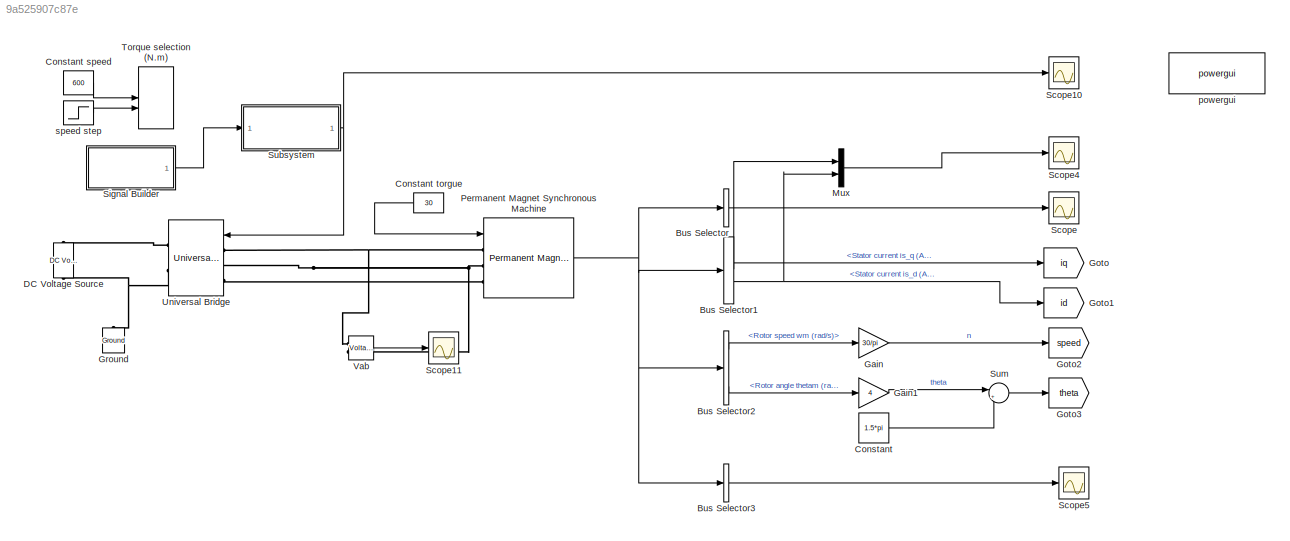
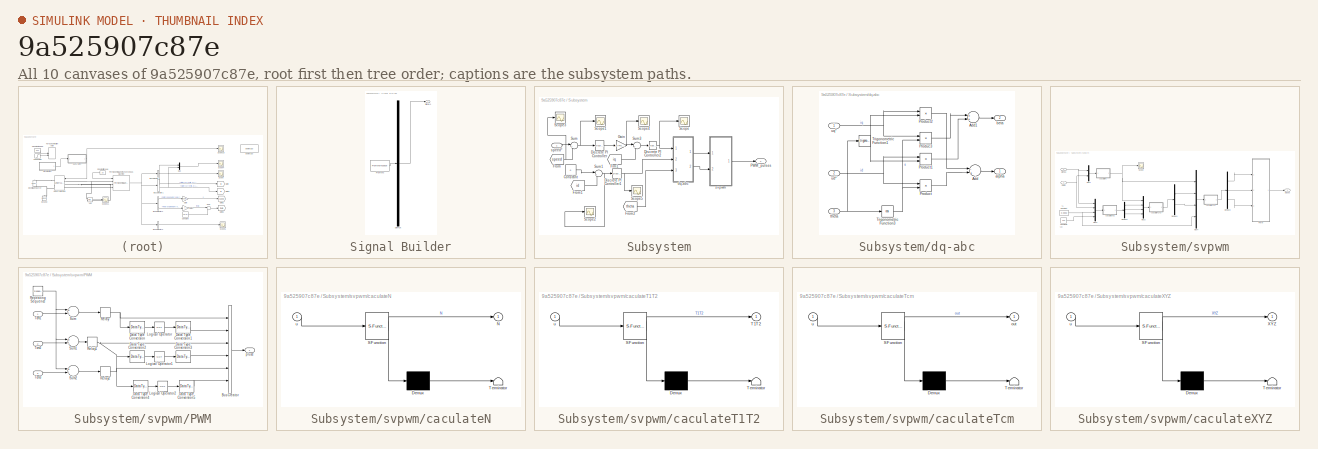
[diagram: thumbnail index - all 10 canvases of the model, root first then tree order]
MODEL slx_9a525907c87e
KIND model
BLOCK [BusSelector] Bus Selector
  OutputAsBus = on
  OutputSignals = Stator current is_a (A),Stator current is_b (A),Stator current is_c (A)
  Ports = [1, 1]
BLOCK [BusSelector] Bus Selector1
  OutputSignals = Stator current is_q (A),Stator current is_d (A)
  Ports = [1, 2]
BLOCK [BusSelector] Bus Selector2
  OutputSignals = Rotor speed wm (rad/s),Electromagnetic torque Te (N*m),Rotor angle thetam (rad)
  Ports = [1, 3]
BLOCK [BusSelector] Bus Selector3
  OutputAsBus = on
  OutputSignals = Stator voltage Vs_q (V),Stator voltage Vs_d (V)
  Ports = [1, 1]
BLOCK [Constant] Constant
  Value = 1.5*pi
BLOCK [Constant] Constant speed
  Commented = on
  Value = 600
BLOCK [Constant] Constant torgue
  Value = 30
BLOCK [Reference] DC Voltage Source  REF=powerlib/Electrical
Sources/DC Voltage Source
  Amplitude = 300
  Measurements = None
  Ports = [0, 0, 0, 0, 0, 1, 1]
  SourceBlock = powerlib/Electrical\nSources/DC Voltage Source
  SourceType = DC Voltage Source
BLOCK [Gain] Gain
  Gain = 30/pi
  OutDataTypeStr = Inherit: Inherit via internal rule
  ParamDataTypeStr = Inherit: Inherit via internal rule
  SaturateOnIntegerOverflow = off
BLOCK [Gain] Gain1
  Gain = 4
  OutDataTypeStr = Inherit: Inherit via internal rule
  ParamDataTypeStr = Inherit: Inherit via internal rule
  SaturateOnIntegerOverflow = off
BLOCK [Goto] Goto
  GotoTag = iq
  TagVisibility = global
BLOCK [Goto] Goto1
  GotoTag = id
  TagVisibility = global
BLOCK [Goto] Goto2
  GotoTag = speed
  TagVisibility = global
BLOCK [Goto] Goto3
  GotoTag = theta
  TagVisibility = global
BLOCK [Reference] Ground  REF=powerlib/Elements/Ground
  LConnTagsString = a
  Ports = [0, 0, 0, 0, 0, 1]
  SourceBlock = powerlib/Elements/Ground
  SourceType = Ground
BLOCK [Mux] Mux
  DisplayOption = bar
  Inputs = 2
  Ports = [2, 1]
BLOCK [Reference] Permanent Magnet Synchronous Machine  REF=powerlib/Machines/Permanent Magnet
Synchronous Machine
  Flat = 120
  Flux = 0.175
  FluxDistribution = Sinusoidal
  Inductance = 8.5e-3
  InitialConditions = [0,0, 0,0]
  InitialConditions5ph = [0 0 0 0 0 0]
  La = 0.000835
  MachineConstant = Flux linkage established by magnets (V.s)
  MeasurementBus = off
  Mechanical = [0.0008 0.001 4]
  MechanicalLoad = Torque Tm
  NbPhases = 3
  PolePairs = 4
  Ports = [1, 1, 0, 0, 0, 3]
  PresetModel = No
  RefAngle = 90 degrees behind phase A axis (modified Park)
  Resistance = 2.8750
  RotorType = Round
  ShowDetailedParameters = on
  SourceBlock = powerlib/Machines/Permanent Magnet\nSynchronous Machine
  SourceType = Permanent Magnet Synchronous Machine
  TorqueCst = 1.05
  TsBlock = -1
  TsPowergui = 0
  VoltageCst = 126.966
  dqInductances = [8.5e-3,8.5e-3]
BLOCK [Scope] Scope
  DataFormat = StructureWithTime
  Floating = off
  LimitDataPoints = off
  NumInputPorts = 1
  Ports = [1]
  SampleTime = 0
  ShowLegends = off
  YMax = 10
  YMin = -11
BLOCK [Scope] Scope10
  DataFormat = StructureWithTime
  Floating = off
  LimitDataPoints = off
  NumInputPorts = 1
  Ports = [1]
  SampleTime = 0
  SaveName = ScopeData6
  ShowLegends = off
  TickLabels = on
  YMax = 1
  YMin = 0
  ZoomMode = xonly
BLOCK [Scope] Scope11
  DataFormat = StructureWithTime
  Floating = off
  LimitDataPoints = off
  NumInputPorts = 1
  Ports = [1]
  SampleTime = 0
  SaveName = ScopeData8
  ShowLegends = off
  YMax = 350
  YMin = -350
BLOCK [Scope] Scope4
  DataFormat = StructureWithTime
  Floating = off
  LimitDataPoints = off
  NumInputPorts = 1
  Ports = [1]
  SampleTime = 0
  SaveName = ScopeData4
  ShowLegends = off
  YMax = 5.25
  YMin = -0.5
BLOCK [Scope] Scope5
  DataFormat = StructureWithTime
  Floating = off
  LimitDataPoints = off
  NumInputPorts = 1
  Ports = [1]
  SampleTime = 0
  SaveName = ScopeData5
  ShowLegends = off
  YMax = 225
  YMin = -200
BLOCK [SubSystem] Signal Builder
  ClipboardFcn = sigbuilder_block('clipboard');
  CloseFcn = sigbuilder_block('close');
  ContinueFcn = sigbuilder_block('continue');
  CopyFcn = sigbuilder_block('copy');
  DeleteFcn = sigbuilder_block('delete');
  LoadFcn = sigbuilder_block('load');
  MaskHideContents = on
  ModelCloseFcn = sigbuilder_block('modelClose');
  NameChangeFcn = sigbuilder_block('namechange');
  OpenFcn = sigbuilder_block('open',[295.5 114.75 550.5 393.75 ]);
  PauseFcn = sigbuilder_block('pause');
  Ports = [0, 1]
  PreSaveFcn = sigbuilder_block('preSave');
  RequestExecContextInheritance = off
  StartFcn = sigbuilder_block('start');
  StopFcn = sigbuilder_block('stop');
  Tag = STV Subsys
BLOCK [Demux] Signal Builder/Demux
  Outputs = 1
  Ports = [1, 1]
  Tag = STV Demux
BLOCK [FromWorkspace] Signal Builder/FromWs
  SampleTime = 0
  Tag = STV FromWs
  VariableName = tuvar
  ZeroCross = on
BLOCK [Outport] Signal Builder/Signal 1
  IconDisplay = Port number
  Tag = STV Outport
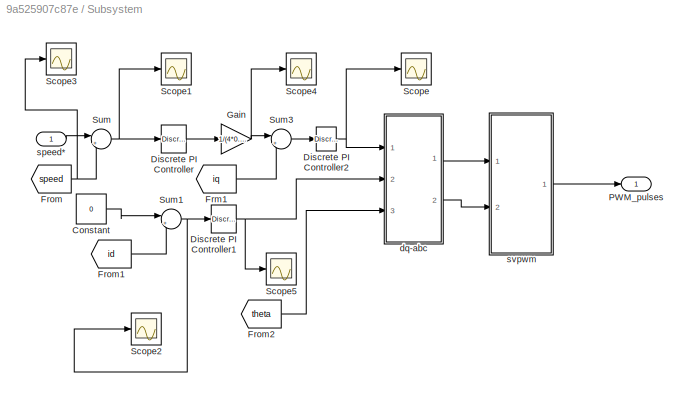
BLOCK [SubSystem] Subsystem
  Ports = [1, 1]
  RequestExecContextInheritance = off
BLOCK [Constant] Subsystem/Constant
  Value = 0
BLOCK [Reference] Subsystem/Discrete PI Controller  REF=powerlib_extras/Discrete 
Control Blocks/Discrete
PI Controller
  Init = 0
  Ki = 60
  Kp = 2.6
  Par_Limits = [30 -30]
  Ports = [1, 1]
  SourceBlock = powerlib_extras/Discrete \nControl Blocks/Discrete\nPI Controller
  SourceType = Discrete PI Controller
  Ts = 5e-6
BLOCK [Reference] Subsystem/Discrete PI Controller1  REF=powerlib_extras/Discrete 
Control Blocks/Discrete
PI Controller
  Init = 0
  Ki = 1000
  Kp = 10
  Par_Limits = [1e6 -1e6]
  Ports = [1, 1]
  SourceBlock = powerlib_extras/Discrete \nControl Blocks/Discrete\nPI Controller
  SourceType = Discrete PI Controller
  Ts = 5e-6
BLOCK [Reference] Subsystem/Discrete PI Controller2  REF=powerlib_extras/Discrete 
Control Blocks/Discrete
PI Controller
  Init = 0
  Ki = 100
  Kp = 3
  Par_Limits = [1e6 -1e6]
  Ports = [1, 1]
  SourceBlock = powerlib_extras/Discrete \nControl Blocks/Discrete\nPI Controller
  SourceType = Discrete PI Controller
  Ts = 5e-6
BLOCK [From] Subsystem/Frm1
  GotoTag = iq
  TagVisibility = global
BLOCK [From] Subsystem/From
  GotoTag = speed
  TagVisibility = global
BLOCK [From] Subsystem/From1
  GotoTag = id
  TagVisibility = global
BLOCK [From] Subsystem/From2
  GotoTag = theta
  TagVisibility = global
BLOCK [Gain] Subsystem/Gain
  Gain = 1/(4*0.175)
  OutDataTypeStr = Inherit: Inherit via internal rule
  ParamDataTypeStr = Inherit: Inherit via internal rule
  SaturateOnIntegerOverflow = off
BLOCK [Outport] Subsystem/PWM_pulses
  IconDisplay = Port number
BLOCK [Scope] Subsystem/Scope
  DataFormat = StructureWithTime
  Floating = off
  LimitDataPoints = off
  NumInputPorts = 1
  Ports = [1]
  SampleTime = 0
  SaveName = ScopeData7
  ShowLegends = off
  YMax = 300
  YMin = -300
BLOCK [Scope] Subsystem/Scope1
  DataFormat = StructureWithTime
  Floating = off
  LimitDataPoints = off
  NumInputPorts = 1
  Ports = [1]
  SampleTime = 0
  SaveName = ScopeData3
  ShowLegends = off
  YMax = 300
  YMin = -300
BLOCK [Scope] Subsystem/Scope2
  DataFormat = StructureWithTime
  Floating = off
  LimitDataPoints = off
  NumInputPorts = 1
  Ports = [1]
  SampleTime = 0
  SaveName = ScopeData9
  ShowLegends = off
  YMax = 300
  YMin = -300
BLOCK [Scope] Subsystem/Scope3
  DataFormat = StructureWithTime
  Floating = off
  LimitDataPoints = off
  NumInputPorts = 1
  Ports = [1]
  SampleTime = 0
  SaveName = ScopeData10
  ShowLegends = off
  YMax = 102
  YMin = 98.25
BLOCK [Scope] Subsystem/Scope4
  DataFormat = StructureWithTime
  Floating = off
  LimitDataPoints = off
  NumInputPorts = 1
  Ports = [1]
  SampleTime = 0
  SaveName = ScopeData11
  ShowLegends = off
  YMax = 37
  YMin = 19
BLOCK [Scope] Subsystem/Scope5
  DataFormat = StructureWithTime
  Floating = off
  LimitDataPoints = off
  NumInputPorts = 1
  Ports = [1]
  SampleTime = 0
  SaveName = ScopeData12
  ShowLegends = off
  YMax = 300
  YMin = -300
BLOCK [Sum] Subsystem/Sum
  IconShape = round
  InputSameDT = off
  Inputs = |+-
  OutDataTypeStr = Inherit: Inherit via internal rule
  Ports = [2, 1]
  SaturateOnIntegerOverflow = off
BLOCK [Sum] Subsystem/Sum1
  IconShape = round
  InputSameDT = off
  Inputs = |+-
  OutDataTypeStr = Inherit: Inherit via internal rule
  Ports = [2, 1]
  SaturateOnIntegerOverflow = off
BLOCK [Sum] Subsystem/Sum3
  IconShape = round
  InputSameDT = off
  Inputs = |+-
  OutDataTypeStr = Inherit: Inherit via internal rule
  Ports = [2, 1]
  SaturateOnIntegerOverflow = off
BLOCK [SubSystem] Subsystem/dq-abc
  Ports = [3, 2]
  RequestExecContextInheritance = off
BLOCK [Sum] Subsystem/dq-abc/Add
  InputSameDT = off
  Inputs = -+
  OutDataTypeStr = Inherit: Inherit via internal rule
  Ports = [2, 1]
  SaturateOnIntegerOverflow = off
BLOCK [Sum] Subsystem/dq-abc/Add1
  InputSameDT = off
  OutDataTypeStr = Inherit: Inherit via internal rule
  Ports = [2, 1]
  SaturateOnIntegerOverflow = off
BLOCK [Product] Subsystem/dq-abc/Produc3
  InputSameDT = off
  OutDataTypeStr = Inherit: Inherit via internal rule
  Ports = [2, 1]
  SaturateOnIntegerOverflow = off
BLOCK [Product] Subsystem/dq-abc/Product
  InputSameDT = off
  OutDataTypeStr = Inherit: Inherit via internal rule
  Ports = [2, 1]
  SaturateOnIntegerOverflow = off
BLOCK [Product] Subsystem/dq-abc/Product1
  InputSameDT = off
  OutDataTypeStr = Inherit: Inherit via internal rule
  Ports = [2, 1]
  SaturateOnIntegerOverflow = off
BLOCK [Product] Subsystem/dq-abc/Product2
  InputSameDT = off
  OutDataTypeStr = Inherit: Inherit via internal rule
  Ports = [2, 1]
  SaturateOnIntegerOverflow = off
BLOCK [Trigonometry] Subsystem/dq-abc/Trigonometric Function1
  Ports = [1, 1]
BLOCK [Trigonometry] Subsystem/dq-abc/Trigonometric Function3
  Operator = cos
  Ports = [1, 1]
BLOCK [Outport] Subsystem/dq-abc/alpha
  IconDisplay = Port number
BLOCK [Outport] Subsystem/dq-abc/beta
  IconDisplay = Port number
  Port = 2
BLOCK [Inport] Subsystem/dq-abc/theta
  IconDisplay = Port number
  Port = 3
BLOCK [Inport] Subsystem/dq-abc/ud*
  IconDisplay = Port number
  Port = 2
BLOCK [Inport] Subsystem/dq-abc/uq*
  IconDisplay = Port number
BLOCK [Inport] Subsystem/speed*
  IconDisplay = Port number
BLOCK [SubSystem] Subsystem/svpwm
  Ports = [2, 1]
  RequestExecContextInheritance = off
BLOCK [Constant] Subsystem/svpwm/Constant
  Value = 0.0002
BLOCK [Constant] Subsystem/svpwm/Constant1
  Value = 300
BLOCK [Demux] Subsystem/svpwm/Demux1
  DisplayOption = bar
  Outputs = 2
  Ports = [1, 2]
BLOCK [Demux] Subsystem/svpwm/Demux2
  DisplayOption = bar
  Outputs = 3
  Ports = [1, 3]
BLOCK [Demux] Subsystem/svpwm/Demux3
  DisplayOption = bar
  Outputs = 3
  Ports = [1, 3]
BLOCK [Mux] Subsystem/svpwm/Mux1
  DisplayOption = bar
  Inputs = 2
  Ports = [2, 1]
BLOCK [Mux] Subsystem/svpwm/Mux2
  DisplayOption = bar
  Ports = [4, 1]
BLOCK [Mux] Subsystem/svpwm/Mux3
  DisplayOption = bar
  Ports = [4, 1]
BLOCK [Mux] Subsystem/svpwm/Mux4
  DisplayOption = bar
  Ports = [4, 1]
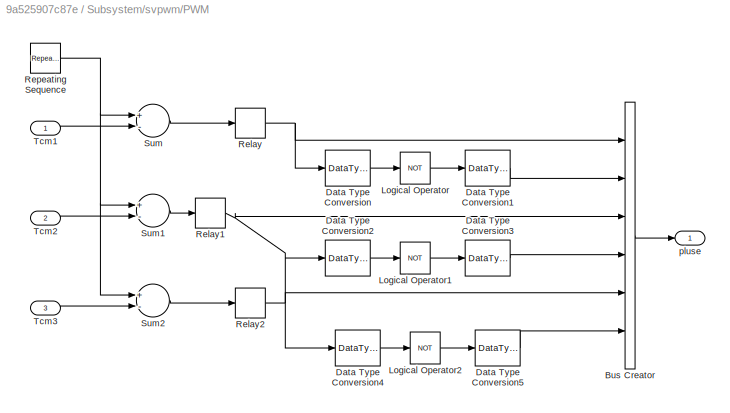
BLOCK [SubSystem] Subsystem/svpwm/PWM
  Ports = [3, 1]
  RequestExecContextInheritance = off
BLOCK [BusCreator] Subsystem/svpwm/PWM/Bus Creator
  DisplayOption = bar
  Inputs = 6
  Ports = [6, 1]
BLOCK [DataTypeConversion] Subsystem/svpwm/PWM/Data Type Conversion
  OutDataTypeStr = boolean
  RndMeth = Floor
  SaturateOnIntegerOverflow = off
BLOCK [DataTypeConversion] Subsystem/svpwm/PWM/Data Type Conversion1
  OutDataTypeStr = double
  RndMeth = Floor
  SaturateOnIntegerOverflow = off
BLOCK [DataTypeConversion] Subsystem/svpwm/PWM/Data Type Conversion2
  OutDataTypeStr = boolean
  RndMeth = Floor
  SaturateOnIntegerOverflow = off
BLOCK [DataTypeConversion] Subsystem/svpwm/PWM/Data Type Conversion3
  OutDataTypeStr = double
  RndMeth = Floor
  SaturateOnIntegerOverflow = off
BLOCK [DataTypeConversion] Subsystem/svpwm/PWM/Data Type Conversion4
  OutDataTypeStr = boolean
  RndMeth = Floor
  SaturateOnIntegerOverflow = off
BLOCK [DataTypeConversion] Subsystem/svpwm/PWM/Data Type Conversion5
  OutDataTypeStr = double
  RndMeth = Floor
  SaturateOnIntegerOverflow = off
BLOCK [Logic] Subsystem/svpwm/PWM/Logical Operator
  AllPortsSameDT = off
  Operator = NOT
  OutDataTypeStr = boolean
  Ports = [1, 1]
BLOCK [Logic] Subsystem/svpwm/PWM/Logical Operator1
  AllPortsSameDT = off
  Operator = NOT
  OutDataTypeStr = boolean
  Ports = [1, 1]
BLOCK [Logic] Subsystem/svpwm/PWM/Logical Operator2
  AllPortsSameDT = off
  Operator = NOT
  OutDataTypeStr = boolean
  Ports = [1, 1]
BLOCK [Relay] Subsystem/svpwm/PWM/Relay
BLOCK [Relay] Subsystem/svpwm/PWM/Relay1
BLOCK [Relay] Subsystem/svpwm/PWM/Relay2
BLOCK [Reference] Subsystem/svpwm/PWM/Repeating Sequence  REF=simulink/Sources/Repeating
Sequence
  Ports = [0, 1]
  SourceBlock = simulink/Sources/Repeating\nSequence
  SourceType = Repeating table
  rep_seq_t = [0 0.0001 0.0002]
  rep_seq_y = [0 0.0001 0]
BLOCK [Sum] Subsystem/svpwm/PWM/Sum
  InputSameDT = off
  Inputs = +-
  OutDataTypeStr = Inherit: Inherit via internal rule
  Ports = [2, 1]
  SaturateOnIntegerOverflow = off
BLOCK [Sum] Subsystem/svpwm/PWM/Sum1
  InputSameDT = off
  Inputs = +-
  OutDataTypeStr = Inherit: Inherit via internal rule
  Ports = [2, 1]
  SaturateOnIntegerOverflow = off
BLOCK [Sum] Subsystem/svpwm/PWM/Sum2
  InputSameDT = off
  Inputs = +-
  OutDataTypeStr = Inherit: Inherit via internal rule
  Ports = [2, 1]
  SaturateOnIntegerOverflow = off
BLOCK [Inport] Subsystem/svpwm/PWM/Tcm1
  IconDisplay = Port number
BLOCK [Inport] Subsystem/svpwm/PWM/Tcm2
  IconDisplay = Port number
  Port = 2
BLOCK [Inport] Subsystem/svpwm/PWM/Tcm3
  IconDisplay = Port number
  Port = 3
BLOCK [Outport] Subsystem/svpwm/PWM/pluse
  IconDisplay = Port number
BLOCK [Scope] Subsystem/svpwm/Scope
  DataFormat = StructureWithTime
  Floating = off
  NumInputPorts = 1
  Ports = [1]
  SampleTime = 0
  SaveName = ScopeData2
  ShowLegends = off
  YMax = 6
  YMin = 1
BLOCK [Inport] Subsystem/svpwm/alpha1
  IconDisplay = Port number
BLOCK [Inport] Subsystem/svpwm/beta1
  IconDisplay = Port number
  Port = 2
BLOCK [SubSystem] Subsystem/svpwm/caculateN
  ErrorFcn = Stateflow.Translate.translate
  PermitHierarchicalResolution = ExplicitOnly
  Ports = [1, 1]
  RequestExecContextInheritance = off
  SFBlockType = MATLAB Function
  TreatAsAtomicUnit = on
BLOCK [Demux] Subsystem/svpwm/caculateN/ Demux 
  Outputs = 1
  Ports = [1, 1]
BLOCK [S-Function] Subsystem/svpwm/caculateN/ SFunction 
  EnableBusSupport = on
  FunctionName = sf_sfun
  PortCounts = [1 2]
  Ports = [1, 2]
  Tag = Stateflow S-Function pmsm_summer_last 3
BLOCK [Terminator] Subsystem/svpwm/caculateN/ Terminator 
BLOCK [Outport] Subsystem/svpwm/caculateN/N
  IconDisplay = Port number
BLOCK [Inport] Subsystem/svpwm/caculateN/u
  IconDisplay = Port number
BLOCK [SubSystem] Subsystem/svpwm/caculateT1T2
  ErrorFcn = Stateflow.Translate.translate
  PermitHierarchicalResolution = ExplicitOnly
  Ports = [1, 1]
  RequestExecContextInheritance = off
  SFBlockType = MATLAB Function
  TreatAsAtomicUnit = on
BLOCK [Demux] Subsystem/svpwm/caculateT1T2/ Demux 
  Outputs = 1
  Ports = [1, 1]
BLOCK [S-Function] Subsystem/svpwm/caculateT1T2/ SFunction 
  EnableBusSupport = on
  FunctionName = sf_sfun
  PortCounts = [1 2]
  Ports = [1, 2]
  Tag = Stateflow S-Function pmsm_summer_last 2
BLOCK [Terminator] Subsystem/svpwm/caculateT1T2/ Terminator 
BLOCK [Outport] Subsystem/svpwm/caculateT1T2/T1T2
  IconDisplay = Port number
BLOCK [Inport] Subsystem/svpwm/caculateT1T2/u
  IconDisplay = Port number
BLOCK [SubSystem] Subsystem/svpwm/caculateTcm
  ErrorFcn = Stateflow.Translate.translate
  PermitHierarchicalResolution = ExplicitOnly
  Ports = [1, 1]
  RequestExecContextInheritance = off
  SFBlockType = MATLAB Function
  TreatAsAtomicUnit = on
BLOCK [Demux] Subsystem/svpwm/caculateTcm/ Demux 
  Outputs = 1
  Ports = [1, 1]
BLOCK [S-Function] Subsystem/svpwm/caculateTcm/ SFunction 
  EnableBusSupport = on
  FunctionName = sf_sfun
  PortCounts = [1 2]
  Ports = [1, 2]
  Tag = Stateflow S-Function pmsm_summer_last 4
BLOCK [Terminator] Subsystem/svpwm/caculateTcm/ Terminator 
BLOCK [Outport] Subsystem/svpwm/caculateTcm/out
  IconDisplay = Port number
BLOCK [Inport] Subsystem/svpwm/caculateTcm/u
  IconDisplay = Port number
BLOCK [SubSystem] Subsystem/svpwm/caculateXYZ
  ErrorFcn = Stateflow.Translate.translate
  PermitHierarchicalResolution = ExplicitOnly
  Ports = [1, 1]
  RequestExecContextInheritance = off
  SFBlockType = MATLAB Function
  TreatAsAtomicUnit = on
BLOCK [Demux] Subsystem/svpwm/caculateXYZ/ Demux 
  Outputs = 1
  Ports = [1, 1]
BLOCK [S-Function] Subsystem/svpwm/caculateXYZ/ SFunction 
  EnableBusSupport = on
  FunctionName = sf_sfun
  PortCounts = [1 2]
  Ports = [1, 2]
  Tag = Stateflow S-Function pmsm_summer_last 1
BLOCK [Terminator] Subsystem/svpwm/caculateXYZ/ Terminator 
BLOCK [Outport] Subsystem/svpwm/caculateXYZ/XYZ
  IconDisplay = Port number
BLOCK [Inport] Subsystem/svpwm/caculateXYZ/u
  IconDisplay = Port number
BLOCK [Outport] Subsystem/svpwm/pluses
  IconDisplay = Port number
BLOCK [Sum] Sum
  IconShape = round
  InputSameDT = off
  Inputs = |++
  OutDataTypeStr = Inherit: Inherit via internal rule
  Ports = [2, 1]
  SaturateOnIntegerOverflow = off
BLOCK [ManualSwitch] Torque selection (N.m)
  Commented = on
  CurrentSetting = 0
BLOCK [Reference] Universal Bridge  REF=powerlib/Power
Electronics/Universal Bridge
  Arms = 3
  Device = IGBT / Diodes
  ForwardVoltage = 0
  ForwardVoltages = [  0  0  ]
  GTOparameters = [ 10e-6 , 20e-6 ]
  IGBTparameters = [ 1e-6 , 2e-6 ]
  Lon = 0
  Measurements = None
  Measurements_2 = None
  Ports = [1, 0, 0, 0, 0, 3, 2]
  Ron = 1e-3
  SnubberCapacitance = inf
  SnubberResistance = 1e5
  SourceBlock = powerlib/Power\nElectronics/Universal Bridge
  SourceType = Universal Bridge
  converterType = Rectifier
BLOCK [Reference] Vab  REF=powerlib/Measurements/Voltage Measurement
  OutputType = Complex
  PSBequivalent = 0
  PhasorSimulation = off
  Ports = [0, 1, 0, 0, 0, 2]
  SourceBlock = powerlib/Measurements/Voltage Measurement
  SourceType = Voltage Measurement
BLOCK [Reference] powergui  REF=powerlib/powergui
  DisableRonSwitches = off
  DisableSnubberDevices = off
  DisableVfSwitches = off
  DisplayEquations = off
  DisplayStyle = 1
  EnableUseOfTLC = off
  ErrMax = 1e-4
  Frange = [0:2:500]
  FreqAxis = off
  FunctionMessages = off
  HookPort = off
  Interpol = off
  Iterations = 50
  MaxFrequency = 1000
  Pbase = 100e6
  Ports = []
  Priority = 2
  ResistiveCurrentMeasurement = off
  RestoreLinks = warning
  RmsSteady = 1
  SPID = off
  SampleTime = 5e-6
  ShowGrid = off
  SolverType = Tustin
  SourceBlock = powerlib/powergui
  SourceType = PSB option menu block
  StartTime = 0.0
  SwTol = 0
  Ts = 0
  UnitsV = kV
  UnitsW = MW
  UserDataPersistent = on
  Xlog = on
  Ylog = off
  ZoomFFT = on
  cycles = 1
  display = off
  echomessages = off
  frequency = 60
  frequencyindice = 0
  frequencyindicesteady = 1
  fundamental = 60
  methode = off
  save = off
  structure = 0
  variable = ZData
  x0status = blocks
BLOCK [Step] speed step
  After = 100
  Before = -100
  Commented = on
  SampleTime = 0
  Time = 0.5
ANNOTATION Subsystem/svpwm: Ts
ANNOTATION Subsystem/svpwm: Vdc
NET Bus Selector1:1 -> Goto:1, Mux:1
NET Bus Selector1:2 -> Goto1:1, Mux:2
LINE Bus Selector2:1 -> Gain:1
LINE Bus Selector2:3 -> Gain1:1
LINE Bus Selector3:1 -> Scope5:1
LINE Bus Selector:1 -> Scope:1
LINE Constant speed:1 -> Torque selection (N.m):1
LINE Constant torgue:1 -> Permanent Magnet Synchronous Machine:1
LINE Constant:1 -> Sum:2
LINE Gain1:1 -> Sum:1
LINE Gain:1 -> Goto2:1
LINE Mux:1 -> Scope4:1
NET Permanent Magnet Synchronous Machine:1 -> Bus Selector1:1, Bus Selector2:1, Bus Selector3:1, Bus Selector:1
LINE Signal Builder:1 -> Subsystem:1
LINE Subsystem/Constant:1 -> Subsystem/Sum1:1
NET Subsystem/Discrete PI Controller1:1 -> Subsystem/Scope5:1, Subsystem/dq-abc:2
NET Subsystem/Discrete PI Controller2:1 -> Subsystem/Scope:1, Subsystem/dq-abc:1
LINE Subsystem/Discrete PI Controller:1 -> Subsystem/Gain:1
LINE Subsystem/Frm1:1 -> Subsystem/Sum3:2
LINE Subsystem/From1:1 -> Subsystem/Sum1:2
LINE Subsystem/From2:1 -> Subsystem/dq-abc:3
NET Subsystem/From:1 -> Subsystem/Scope3:1, Subsystem/Sum:2
NET Subsystem/Gain:1 -> Subsystem/Scope4:1, Subsystem/Sum3:1
NET Subsystem/Sum1:1 -> Subsystem/Discrete PI Controller1:1, Subsystem/Scope2:1
LINE Subsystem/Sum3:1 -> Subsystem/Discrete PI Controller2:1
NET Subsystem/Sum:1 -> Subsystem/Discrete PI Controller:1, Subsystem/Scope1:1
LINE Subsystem/dq-abc/Add1:1 -> Subsystem/dq-abc/beta:1
LINE Subsystem/dq-abc/Add:1 -> Subsystem/dq-abc/alpha:1
LINE Subsystem/dq-abc/Produc3:1 -> Subsystem/dq-abc/Add1:1
LINE Subsystem/dq-abc/Product1:1 -> Subsystem/dq-abc/Add1:2
LINE Subsystem/dq-abc/Product2:1 -> Subsystem/dq-abc/Add:1
LINE Subsystem/dq-abc/Product:1 -> Subsystem/dq-abc/Add:2
NET Subsystem/dq-abc/Trigonometric Function1:1 -> Subsystem/dq-abc/Product1:2, Subsystem/dq-abc/Product2:2
NET Subsystem/dq-abc/Trigonometric Function3:1 -> Subsystem/dq-abc/Produc3:2, Subsystem/dq-abc/Product:2
NET Subsystem/dq-abc/theta:1 -> Subsystem/dq-abc/Trigonometric Function1:1, Subsystem/dq-abc/Trigonometric Function3:1
NET Subsystem/dq-abc/ud*:1 -> Subsystem/dq-abc/Product1:1, Subsystem/dq-abc/Product:1
NET Subsystem/dq-abc/uq*:1 -> Subsystem/dq-abc/Produc3:1, Subsystem/dq-abc/Product2:1
LINE Subsystem/dq-abc:1 -> Subsystem/svpwm:1
LINE Subsystem/dq-abc:2 -> Subsystem/svpwm:2
LINE Subsystem/speed*:1 -> Subsystem/Sum:1
LINE Subsystem/svpwm/Constant1:1 -> Subsystem/svpwm/Mux3:4
NET Subsystem/svpwm/Constant:1 -> Subsystem/svpwm/Mux3:3, Subsystem/svpwm/Mux4:4
LINE Subsystem/svpwm/Demux1:1 -> Subsystem/svpwm/Mux4:2
LINE Subsystem/svpwm/Demux1:2 -> Subsystem/svpwm/Mux4:3
LINE Subsystem/svpwm/Demux2:1 -> Subsystem/svpwm/Mux2:2
LINE Subsystem/svpwm/Demux2:2 -> Subsystem/svpwm/Mux2:3
LINE Subsystem/svpwm/Demux2:3 -> Subsystem/svpwm/Mux2:4
LINE Subsystem/svpwm/Demux3:1 -> Subsystem/svpwm/PWM:1
LINE Subsystem/svpwm/Demux3:2 -> Subsystem/svpwm/PWM:2
LINE Subsystem/svpwm/Demux3:3 -> Subsystem/svpwm/PWM:3
LINE Subsystem/svpwm/Mux1:1 -> Subsystem/svpwm/caculateN:1
LINE Subsystem/svpwm/Mux2:1 -> Subsystem/svpwm/caculateT1T2:1
LINE Subsystem/svpwm/Mux3:1 -> Subsystem/svpwm/caculateXYZ:1
LINE Subsystem/svpwm/Mux4:1 -> Subsystem/svpwm/caculateTcm:1
LINE Subsystem/svpwm/PWM/Bus Creator:1 -> Subsystem/svpwm/PWM/pluse:1
LINE Subsystem/svpwm/PWM/Data Type Conversion1:1 -> Subsystem/svpwm/PWM/Bus Creator:2
LINE Subsystem/svpwm/PWM/Data Type Conversion2:1 -> Subsystem/svpwm/PWM/Logical Operator1:1
LINE Subsystem/svpwm/PWM/Data Type Conversion3:1 -> Subsystem/svpwm/PWM/Bus Creator:4
LINE Subsystem/svpwm/PWM/Data Type Conversion4:1 -> Subsystem/svpwm/PWM/Logical Operator2:1
LINE Subsystem/svpwm/PWM/Data Type Conversion5:1 -> Subsystem/svpwm/PWM/Bus Creator:6
LINE Subsystem/svpwm/PWM/Data Type Conversion:1 -> Subsystem/svpwm/PWM/Logical Operator:1
LINE Subsystem/svpwm/PWM/Logical Operator1:1 -> Subsystem/svpwm/PWM/Data Type Conversion3:1
LINE Subsystem/svpwm/PWM/Logical Operator2:1 -> Subsystem/svpwm/PWM/Data Type Conversion5:1
LINE Subsystem/svpwm/PWM/Logical Operator:1 -> Subsystem/svpwm/PWM/Data Type Conversion1:1
NET Subsystem/svpwm/PWM/Relay1:1 -> Subsystem/svpwm/PWM/Bus Creator:3, Subsystem/svpwm/PWM/Data Type Conversion2:1
NET Subsystem/svpwm/PWM/Relay2:1 -> Subsystem/svpwm/PWM/Bus Creator:5, Subsystem/svpwm/PWM/Data Type Conversion4:1
NET Subsystem/svpwm/PWM/Relay:1 -> Subsystem/svpwm/PWM/Bus Creator:1, Subsystem/svpwm/PWM/Data Type Conversion:1
NET Subsystem/svpwm/PWM/Repeating Sequence:1 -> Subsystem/svpwm/PWM/Sum1:1, Subsystem/svpwm/PWM/Sum2:1, Subsystem/svpwm/PWM/Sum:1
LINE Subsystem/svpwm/PWM/Sum1:1 -> Subsystem/svpwm/PWM/Relay1:1
LINE Subsystem/svpwm/PWM/Sum2:1 -> Subsystem/svpwm/PWM/Relay2:1
LINE Subsystem/svpwm/PWM/Sum:1 -> Subsystem/svpwm/PWM/Relay:1
LINE Subsystem/svpwm/PWM/Tcm1:1 -> Subsystem/svpwm/PWM/Sum:2
LINE Subsystem/svpwm/PWM/Tcm2:1 -> Subsystem/svpwm/PWM/Sum1:2
LINE Subsystem/svpwm/PWM/Tcm3:1 -> Subsystem/svpwm/PWM/Sum2:2
LINE Subsystem/svpwm/PWM:1 -> Subsystem/svpwm/pluses:1
NET Subsystem/svpwm/alpha1:1 -> Subsystem/svpwm/Mux1:1, Subsystem/svpwm/Mux3:1
NET Subsystem/svpwm/beta1:1 -> Subsystem/svpwm/Mux1:2, Subsystem/svpwm/Mux3:2
NET Subsystem/svpwm/caculateN:1 -> Subsystem/svpwm/Mux2:1, Subsystem/svpwm/Mux4:1, Subsystem/svpwm/Scope:1
LINE Subsystem/svpwm/caculateT1T2:1 -> Subsystem/svpwm/Demux1:1
LINE Subsystem/svpwm/caculateTcm:1 -> Subsystem/svpwm/Demux3:1
LINE Subsystem/svpwm/caculateXYZ:1 -> Subsystem/svpwm/Demux2:1
LINE Subsystem/svpwm:1 -> Subsystem/PWM_pulses:1
NET Subsystem:1 -> Scope10:1, Universal Bridge:1
LINE Sum:1 -> Goto3:1
LINE Vab:1 -> Scope11:1
LINE speed step:1 -> Torque selection (N.m):2
PNET net1: DC Voltage Source:LConn1 -- Ground:LConn1 -- Universal Bridge:RConn2
PLINE DC Voltage Source:RConn1 -- Universal Bridge:RConn1
PNET net2: Permanent Magnet Synchronous Machine:LConn1 -- Universal Bridge:LConn1 -- Vab:LConn1
PNET net3: Permanent Magnet Synchronous Machine:LConn2 -- Universal Bridge:LConn2 -- Vab:LConn2
PLINE Permanent Magnet Synchronous Machine:LConn3 -- Universal Bridge:LConn3
note: NET lines group one-source signal fan-out (src -> all destinations, sorted); 1:1 wires keep LINE; PNET lines group multi-terminal physical nets as a canonical sorted terminal list (undirected conserving connections); 2-terminal nets keep the pairwise PLINE form
